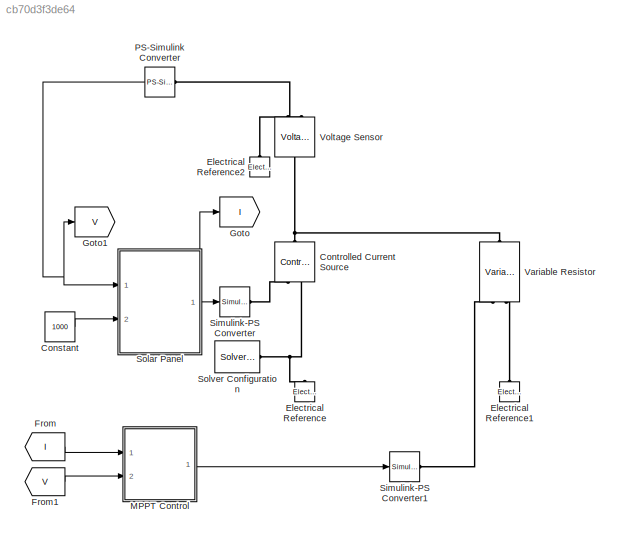
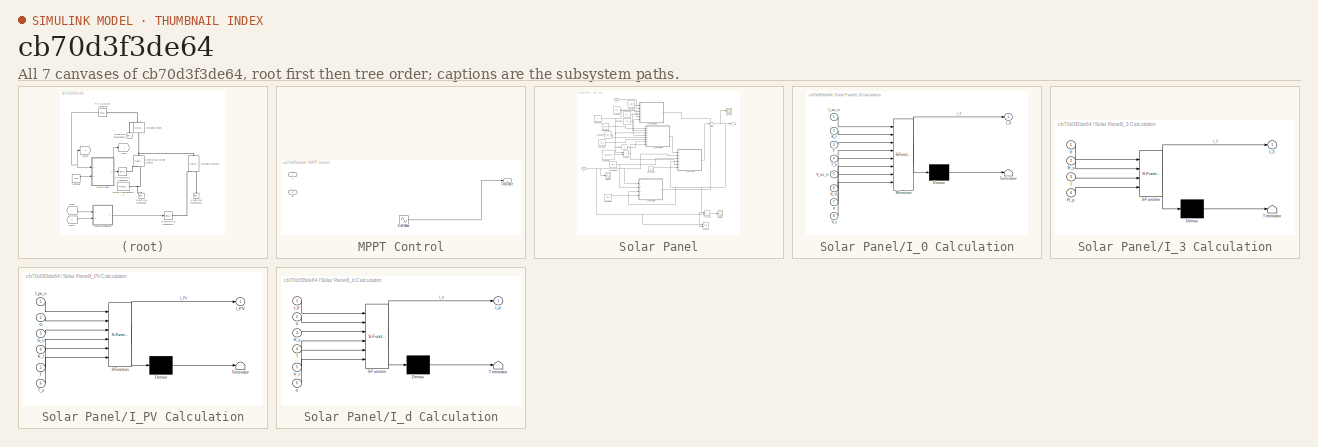
[diagram: thumbnail index - all 7 canvases of the model, root first then tree order]
MODEL slx_cb70d3f3de64
KIND model
CONFIG AbsTol = auto
CONFIG FixedStep = auto
CONFIG MaxStep = auto
CONFIG MinStep = auto
CONFIG RelTol = 1e-3
CONFIG SampleTimeConstraint = Unconstrained
CONFIG Solver = FixedStepAuto
CONFIG SolverMode = Auto
CONFIG SolverName = FixedStepAuto
CONFIG StartTime = 0.0
CONFIG StopTime = 10.0
BLOCK [Constant] Constant
  Value = 1000
BLOCK [Reference] Controlled Current Source  REF=fl_lib/Electrical/Electrical Sources/Controlled Current
Source
  Ports = [0, 0, 0, 0, 0, 1, 2]
  SourceBlock = fl_lib/Electrical/Electrical Sources/Controlled Current\nSource
  SourceType = Controlled Current\nSource
BLOCK [Reference] Electrical Reference  REF=fl_lib/Electrical/Electrical Elements/Electrical Reference
  Ports = [0, 0, 0, 0, 0, 1]
  SourceBlock = fl_lib/Electrical/Electrical Elements/Electrical Reference
  SourceType = Electrical Reference
BLOCK [Reference] Electrical Reference1  REF=fl_lib/Electrical/Electrical Elements/Electrical Reference
  Ports = [0, 0, 0, 0, 0, 1]
  SourceBlock = fl_lib/Electrical/Electrical Elements/Electrical Reference
  SourceType = Electrical Reference
BLOCK [Reference] Electrical Reference2  REF=fl_lib/Electrical/Electrical Elements/Electrical Reference
  Ports = [0, 0, 0, 0, 0, 1]
  SourceBlock = fl_lib/Electrical/Electrical Elements/Electrical Reference
  SourceType = Electrical Reference
BLOCK [From] From
  GotoTag = I
BLOCK [From] From1
  GotoTag = V
BLOCK [Goto] Goto
  GotoTag = I
BLOCK [Goto] Goto1
  GotoTag = V
BLOCK [SubSystem] MPPT Control
  Ports = [2, 1]
  RequestExecContextInheritance = off
  Variant = off
BLOCK [Outport] MPPT Control/Duty cycle
  IconDisplay = Port number
BLOCK [Inport] MPPT Control/I
  IconDisplay = Port number
BLOCK [Sin] MPPT Control/Sine Wave
  Amplitude = 11
  Bias = 11
  Ports = [0, 1]
  SampleTime = 0
BLOCK [Inport] MPPT Control/V
  IconDisplay = Port number
  Port = 2
BLOCK [Reference] PS-Simulink Converter  REF=nesl_utility/PS-Simulink
Converter
  Ports = [0, 1, 0, 0, 0, 1]
  SourceBlock = nesl_utility/PS-Simulink\nConverter
  SourceType = PS-Simulink\nConverter
BLOCK [Reference] Simulink-PS Converter  REF=nesl_utility/Simulink-PS
Converter
  Ports = [1, 0, 0, 0, 0, 0, 1]
  SourceBlock = nesl_utility/Simulink-PS\nConverter
  SourceType = Simulink-PS\nConverter
BLOCK [Reference] Simulink-PS Converter1  REF=nesl_utility/Simulink-PS
Converter
  Ports = [1, 0, 0, 0, 0, 0, 1]
  SourceBlock = nesl_utility/Simulink-PS\nConverter
  SourceType = Simulink-PS\nConverter
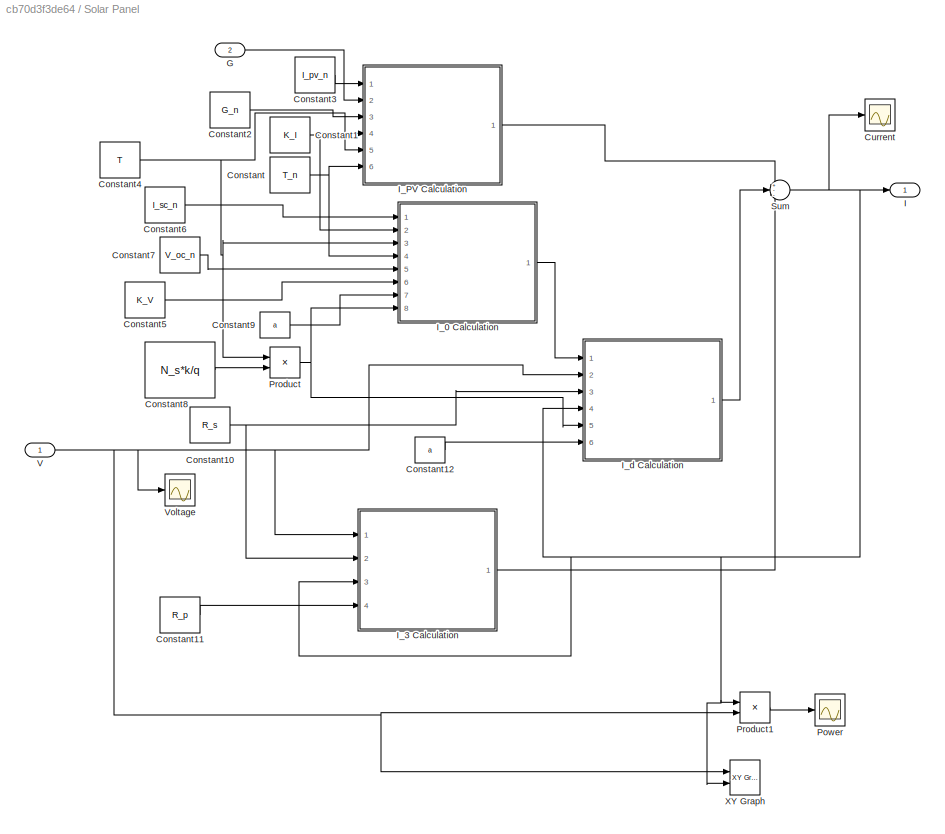
BLOCK [SubSystem] Solar Panel
  Ports = [2, 1]
  RequestExecContextInheritance = off
  Variant = off
BLOCK [Constant] Solar Panel/Constant
  Value = T_n
BLOCK [Constant] Solar Panel/Constant1
  Value = K_I
BLOCK [Constant] Solar Panel/Constant10
  Value = R_s
BLOCK [Constant] Solar Panel/Constant11
  Value = R_p
BLOCK [Constant] Solar Panel/Constant12
  Value = a
BLOCK [Constant] Solar Panel/Constant2
  Value = G_n
BLOCK [Constant] Solar Panel/Constant3
  Value = I_pv_n
BLOCK [Constant] Solar Panel/Constant4
  Value = T
BLOCK [Constant] Solar Panel/Constant5
  Value = K_V
BLOCK [Constant] Solar Panel/Constant6
  Value = I_sc_n
BLOCK [Constant] Solar Panel/Constant7
  Value = V_oc_n
BLOCK [Constant] Solar Panel/Constant8
  Value = N_s*k/q
BLOCK [Constant] Solar Panel/Constant9
  Value = a
BLOCK [Scope] Solar Panel/Current
  Ports = [1]
  ScopeSpecificationString = Simulink.scopes.TimeScopeBlockCfg('CurrentConfiguration', extmgr.ConfigurationSet(extmgr.Configuration('Core','General UI',true),extmgr.Configuration('Core','Source UI',true),extmgr.Configuration('Sources','WiredSimulink',true,'DataLoggingVariableName','ScopeData1'),extmgr.Configuration('Visuals','Time Domain',true,'SerializedDisplays',{struct('MinYLimReal','-8034.3304','MaxYLimReal','899.983','YL...<+1454ch>
BLOCK [Inport] Solar Panel/G
  IconDisplay = Port number
  Port = 2
BLOCK [Outport] Solar Panel/I
  IconDisplay = Port number
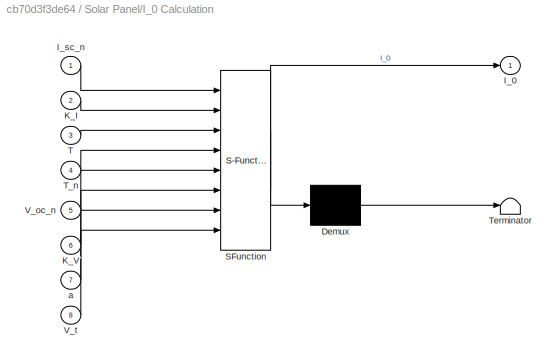
BLOCK [SubSystem] Solar Panel/I_0 Calculation
  ErrorFcn = Stateflow.Translate.translate
  PermitHierarchicalResolution = ExplicitOnly
  Ports = [8, 1]
  RequestExecContextInheritance = off
  SFBlockType = MATLAB Function
  TreatAsAtomicUnit = on
  Variant = off
BLOCK [Demux] Solar Panel/I_0 Calculation/ Demux 
  Outputs = 1
  Ports = [1, 1]
BLOCK [S-Function] Solar Panel/I_0 Calculation/ SFunction 
  EnableBusSupport = on
  FunctionName = sf_sfun
  PortCounts = [8 2]
  Ports = [8, 2]
  SFunctionDeploymentMode = off
  Tag = Stateflow S-Function GSK_PVModel_02 2
BLOCK [Terminator] Solar Panel/I_0 Calculation/ Terminator 
BLOCK [Outport] Solar Panel/I_0 Calculation/I_0
  IconDisplay = Port number
BLOCK [Inport] Solar Panel/I_0 Calculation/I_sc_n
  IconDisplay = Port number
BLOCK [Inport] Solar Panel/I_0 Calculation/K_I
  IconDisplay = Port number
  Port = 2
BLOCK [Inport] Solar Panel/I_0 Calculation/K_V
  IconDisplay = Port number
  Port = 6
BLOCK [Inport] Solar Panel/I_0 Calculation/T
  IconDisplay = Port number
  Port = 3
BLOCK [Inport] Solar Panel/I_0 Calculation/T_n
  IconDisplay = Port number
  Port = 4
BLOCK [Inport] Solar Panel/I_0 Calculation/V_oc_n
  IconDisplay = Port number
  Port = 5
BLOCK [Inport] Solar Panel/I_0 Calculation/V_t
  IconDisplay = Port number
  Port = 8
BLOCK [Inport] Solar Panel/I_0 Calculation/a
  IconDisplay = Port number
  Port = 7
BLOCK [SubSystem] Solar Panel/I_3 Calculation
  ErrorFcn = Stateflow.Translate.translate
  PermitHierarchicalResolution = ExplicitOnly
  Ports = [4, 1]
  RequestExecContextInheritance = off
  SFBlockType = MATLAB Function
  TreatAsAtomicUnit = on
  Variant = off
BLOCK [Demux] Solar Panel/I_3 Calculation/ Demux 
  Outputs = 1
  Ports = [1, 1]
BLOCK [S-Function] Solar Panel/I_3 Calculation/ SFunction 
  EnableBusSupport = on
  FunctionName = sf_sfun
  PortCounts = [4 2]
  Ports = [4, 2]
  SFunctionDeploymentMode = off
  Tag = Stateflow S-Function GSK_PVModel_02 4
BLOCK [Terminator] Solar Panel/I_3 Calculation/ Terminator 
BLOCK [Inport] Solar Panel/I_3 Calculation/I
  IconDisplay = Port number
  Port = 3
BLOCK [Outport] Solar Panel/I_3 Calculation/I_3
  IconDisplay = Port number
BLOCK [Inport] Solar Panel/I_3 Calculation/R_p
  IconDisplay = Port number
  Port = 4
BLOCK [Inport] Solar Panel/I_3 Calculation/R_s
  IconDisplay = Port number
  Port = 2
BLOCK [Inport] Solar Panel/I_3 Calculation/V
  IconDisplay = Port number
BLOCK [SubSystem] Solar Panel/I_PV Calculation
  ErrorFcn = Stateflow.Translate.translate
  PermitHierarchicalResolution = ExplicitOnly
  Ports = [6, 1]
  RequestExecContextInheritance = off
  SFBlockType = MATLAB Function
  TreatAsAtomicUnit = on
  Variant = off
BLOCK [Demux] Solar Panel/I_PV Calculation/ Demux 
  Outputs = 1
  Ports = [1, 1]
BLOCK [S-Function] Solar Panel/I_PV Calculation/ SFunction 
  EnableBusSupport = on
  FunctionName = sf_sfun
  PortCounts = [6 2]
  Ports = [6, 2]
  SFunctionDeploymentMode = off
  Tag = Stateflow S-Function GSK_PVModel_02 1
BLOCK [Terminator] Solar Panel/I_PV Calculation/ Terminator 
BLOCK [Inport] Solar Panel/I_PV Calculation/G
  IconDisplay = Port number
  Port = 2
BLOCK [Inport] Solar Panel/I_PV Calculation/G_n
  IconDisplay = Port number
  Port = 3
BLOCK [Outport] Solar Panel/I_PV Calculation/I_PV
  IconDisplay = Port number
BLOCK [Inport] Solar Panel/I_PV Calculation/I_pv_n
  IconDisplay = Port number
BLOCK [Inport] Solar Panel/I_PV Calculation/K_I
  IconDisplay = Port number
  Port = 4
BLOCK [Inport] Solar Panel/I_PV Calculation/T
  IconDisplay = Port number
  Port = 5
BLOCK [Inport] Solar Panel/I_PV Calculation/T_n
  IconDisplay = Port number
  Port = 6
BLOCK [SubSystem] Solar Panel/I_d Calculation
  ErrorFcn = Stateflow.Translate.translate
  PermitHierarchicalResolution = ExplicitOnly
  Ports = [6, 1]
  RequestExecContextInheritance = off
  SFBlockType = MATLAB Function
  TreatAsAtomicUnit = on
  Variant = off
BLOCK [Demux] Solar Panel/I_d Calculation/ Demux 
  Outputs = 1
  Ports = [1, 1]
BLOCK [S-Function] Solar Panel/I_d Calculation/ SFunction 
  EnableBusSupport = on
  FunctionName = sf_sfun
  PortCounts = [6 2]
  Ports = [6, 2]
  SFunctionDeploymentMode = off
  Tag = Stateflow S-Function GSK_PVModel_02 3
BLOCK [Terminator] Solar Panel/I_d Calculation/ Terminator 
BLOCK [Inport] Solar Panel/I_d Calculation/I
  IconDisplay = Port number
  Port = 4
BLOCK [Inport] Solar Panel/I_d Calculation/I_0
  IconDisplay = Port number
BLOCK [Outport] Solar Panel/I_d Calculation/I_d
  IconDisplay = Port number
BLOCK [Inport] Solar Panel/I_d Calculation/R_s
  IconDisplay = Port number
  Port = 3
BLOCK [Inport] Solar Panel/I_d Calculation/V
  IconDisplay = Port number
  Port = 2
BLOCK [Inport] Solar Panel/I_d Calculation/V_t
  IconDisplay = Port number
  Port = 5
BLOCK [Inport] Solar Panel/I_d Calculation/a
  IconDisplay = Port number
  Port = 6
BLOCK [Scope] Solar Panel/Power
  Ports = [1]
  ScopeSpecificationString = Simulink.scopes.TimeScopeBlockCfg('CurrentConfiguration', extmgr.ConfigurationSet(extmgr.Configuration('Core','General UI',true),extmgr.Configuration('Core','Source UI',true),extmgr.Configuration('Sources','WiredSimulink',true,'DataLoggingVariableName','ScopeData2'),extmgr.Configuration('Visuals','Time Domain',true,'SerializedDisplays',{struct('MinYLimReal','-51.47704','MaxYLimReal','463.29336','Y...<+1474ch>
BLOCK [Product] Solar Panel/Product
  InputSameDT = off
  OutDataTypeStr = Inherit: Inherit via internal rule
  Ports = [2, 1]
  RndMeth = Floor
  SaturateOnIntegerOverflow = off
BLOCK [Product] Solar Panel/Product1
  InputSameDT = off
  OutDataTypeStr = Inherit: Inherit via internal rule
  Ports = [2, 1]
  RndMeth = Floor
  SaturateOnIntegerOverflow = off
BLOCK [Sum] Solar Panel/Sum
  IconShape = round
  InputSameDT = off
  Inputs = +--
  OutDataTypeStr = Inherit: Inherit via internal rule
  Ports = [3, 1]
  SaturateOnIntegerOverflow = off
BLOCK [Inport] Solar Panel/V
  IconDisplay = Port number
BLOCK [Scope] Solar Panel/Voltage
  Ports = [1]
  ScopeSpecificationString = Simulink.scopes.TimeScopeBlockCfg('CurrentConfiguration', extmgr.ConfigurationSet(extmgr.Configuration('Core','General UI',true),extmgr.Configuration('Core','Source UI',true),extmgr.Configuration('Sources','WiredSimulink',true),extmgr.Configuration('Visuals','Time Domain',true,'SerializedDisplays',{struct('MinYLimReal','3.2744','MaxYLimReal','3.27645','YLabelReal','','MinYLimMag','3.2744','MaxYLim...<+1386ch>
BLOCK [Reference] Solar Panel/XY Graph  REF=simulink/Sinks/XY Graph
  Ports = [2]
  SourceBlock = simulink/Sinks/XY Graph
  SourceType = XY scope.
BLOCK [Reference] Solver Configuration  REF=nesl_utility/Solver
Configuration
  Ports = [0, 0, 0, 0, 0, 0, 1]
  SourceBlock = nesl_utility/Solver\nConfiguration
  SourceType = Solver\nConfiguration
BLOCK [Reference] Variable Resistor  REF=fl_lib/Electrical/Electrical Elements/Variable Resistor
  Ports = [0, 0, 0, 0, 0, 2, 1]
  SourceBlock = fl_lib/Electrical/Electrical Elements/Variable Resistor
  SourceType = Variable Resistor
BLOCK [Reference] Voltage Sensor  REF=fl_lib/Electrical/Electrical Sensors/Voltage Sensor
  Ports = [0, 0, 0, 0, 0, 1, 2]
  SourceBlock = fl_lib/Electrical/Electrical Sensors/Voltage Sensor
  SourceType = Voltage Sensor
LINE Constant:1 -> Solar Panel:2
LINE From1:1 -> MPPT Control:2
LINE From:1 -> MPPT Control:1
LINE MPPT Control/Sine Wave:1 -> MPPT Control/Duty cycle:1
LINE MPPT Control:1 -> Simulink-PS Converter1:1
NET PS-Simulink Converter:1 -> Goto1:1, Solar Panel:1
NET Solar Panel/Constant10:1 -> Solar Panel/I_3 Calculation:2, Solar Panel/I_d Calculation:3
LINE Solar Panel/Constant11:1 -> Solar Panel/I_3 Calculation:4
LINE Solar Panel/Constant12:1 -> Solar Panel/I_d Calculation:6
NET Solar Panel/Constant1:1 -> Solar Panel/I_0 Calculation:2, Solar Panel/I_PV Calculation:4
LINE Solar Panel/Constant2:1 -> Solar Panel/I_PV Calculation:3
LINE Solar Panel/Constant3:1 -> Solar Panel/I_PV Calculation:1
NET Solar Panel/Constant4:1 -> Solar Panel/I_0 Calculation:3, Solar Panel/I_PV Calculation:5, Solar Panel/Product:1
LINE Solar Panel/Constant5:1 -> Solar Panel/I_0 Calculation:6
LINE Solar Panel/Constant6:1 -> Solar Panel/I_0 Calculation:1
LINE Solar Panel/Constant7:1 -> Solar Panel/I_0 Calculation:5
LINE Solar Panel/Constant8:1 -> Solar Panel/Product:2
LINE Solar Panel/Constant9:1 -> Solar Panel/I_0 Calculation:7
NET Solar Panel/Constant:1 -> Solar Panel/I_0 Calculation:4, Solar Panel/I_PV Calculation:6
LINE Solar Panel/G:1 -> Solar Panel/I_PV Calculation:2
LINE Solar Panel/I_0 Calculation:1 -> Solar Panel/I_d Calculation:1
LINE Solar Panel/I_3 Calculation:1 -> Solar Panel/Sum:3
LINE Solar Panel/I_PV Calculation:1 -> Solar Panel/Sum:1
LINE Solar Panel/I_d Calculation:1 -> Solar Panel/Sum:2
LINE Solar Panel/Product1:1 -> Solar Panel/Power:1
NET Solar Panel/Product:1 -> Solar Panel/I_0 Calculation:8, Solar Panel/I_d Calculation:5
NET Solar Panel/Sum:1 -> Solar Panel/Current:1, Solar Panel/I:1, Solar Panel/I_3 Calculation:3, Solar Panel/I_d Calculation:4, Solar Panel/Product1:1, Solar Panel/XY Graph:2
NET Solar Panel/V:1 -> Solar Panel/I_3 Calculation:1, Solar Panel/I_d Calculation:2, Solar Panel/Product1:2, Solar Panel/Voltage:1, Solar Panel/XY Graph:1
NET Solar Panel:1 -> Goto:1, Simulink-PS Converter:1
PNET net1: Controlled Current Source:LConn1 -- Variable Resistor:RConn1 -- Voltage Sensor:LConn1
PLINE Controlled Current Source:RConn1 -- Simulink-PS Converter:RConn1
PNET net2: Controlled Current Source:RConn2 -- Electrical Reference:LConn1 -- Solver Configuration:RConn1
PLINE Electrical Reference1:LConn1 -- Variable Resistor:LConn2
PLINE Electrical Reference2:LConn1 -- Voltage Sensor:RConn2
PLINE PS-Simulink Converter:LConn1 -- Voltage Sensor:RConn1
PLINE Simulink-PS Converter1:RConn1 -- Variable Resistor:LConn1
note: NET lines group one-source signal fan-out (src -> all destinations, sorted); 1:1 wires keep LINE; PNET lines group multi-terminal physical nets as a canonical sorted terminal list (undirected conserving connections); 2-terminal nets keep the pairwise PLINE form
CHART Solar Panel/I_PV Calculation states=1 transitions=1
  STATE_LABEL 'eML_blk_kernel()'
  STATE_LABEL 'SCRIPT:\nfunction I_PV = fcn(I_pv_n, G, G_n, K_I, T, T_n )\n%#codegen\nDelta_T = (T - T_n);\nI_PV = (I_pv_n + K_I*Delta_T)*G/G_n;'
CHART Solar Panel/I_0 Calculation states=1 transitions=1
  STATE_LABEL 'eML_blk_kernel()'
  STATE_LABEL 'SCRIPT:\nfunction I_0 = fcn(I_sc_n, K_I, T, T_n, V_oc_n, K_V, a, V_t)\n%#codegen\nDelta_T = (T - T_n);\nI_0 = (I_sc_n + K_I * Delta_T )/(exp((V_oc_n + K_V*Delta_T)/(a*V_t))-1);'
CHART Solar Panel/I_d Calculation states=1 transitions=1
  STATE_LABEL 'eML_blk_kernel()'
  STATE_LABEL 'SCRIPT:\nfunction I_d = fcn(I_0, V, R_s, I, V_t, a)\n%#codegen\nI_d = I_0*(exp((V+R_s*I)/(V_t*a))-1);'
CHART Solar Panel/I_3 Calculation states=1 transitions=1
  STATE_LABEL 'eML_blk_kernel()'
  STATE_LABEL 'SCRIPT:\nfunction I_3 = fcn(V, R_s, I, R_p)\n%#codegen\nI_3 = (V+R_s*I)/R_p;'
